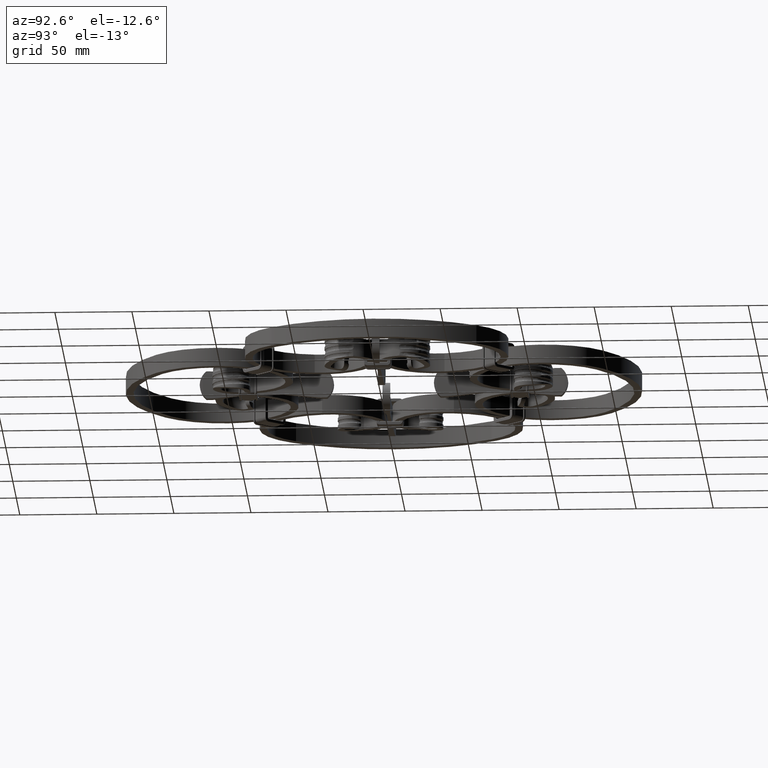
[diagram: clean part render]
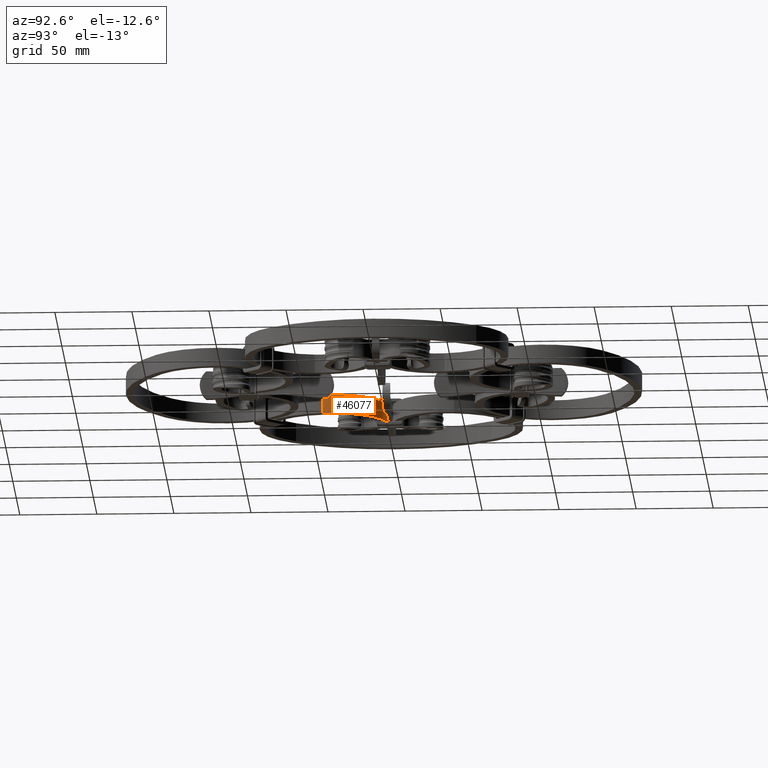
[diagram: same view with one face highlighted and labeled with its STEP entity id]
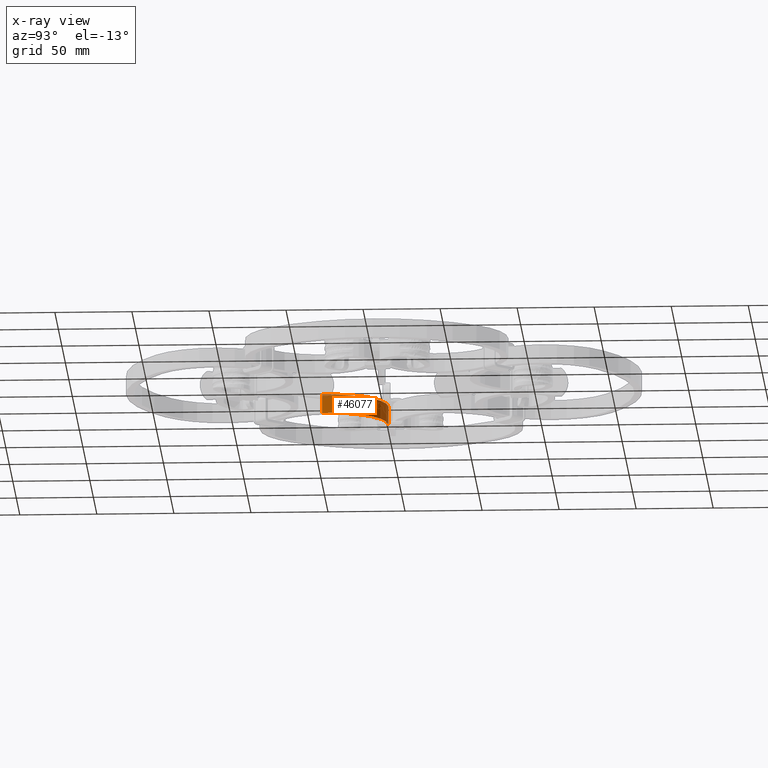
[diagram: x-ray of the same camera — body ghosted, the highlighted face saturated]
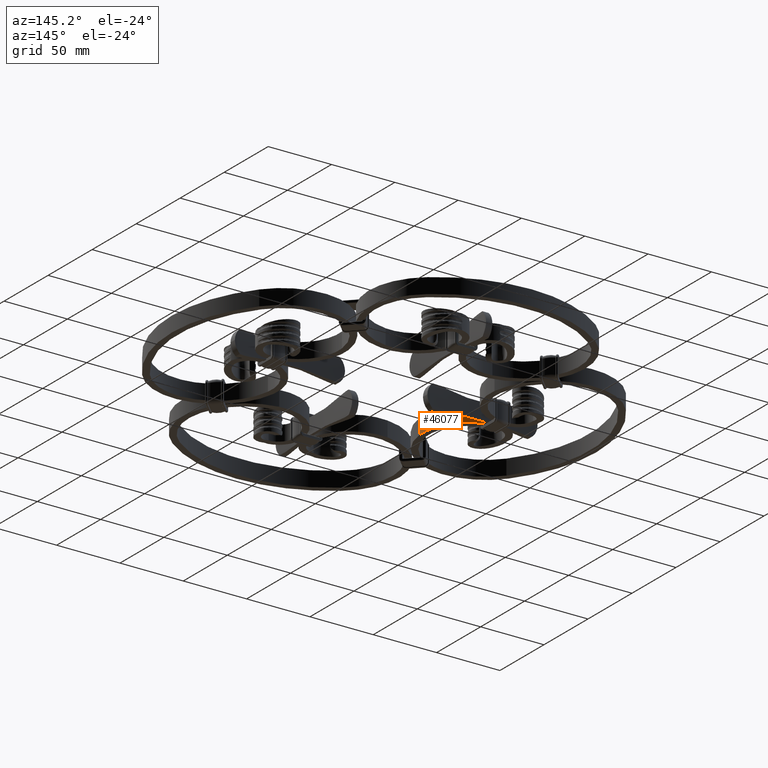
[diagram: same view with one face highlighted and labeled with its STEP entity id]
A machine part, auxiliary view. The second image highlights one B-rep face of the part: STEP entity #46077.
The next image is the same camera in x-ray: the body ghosted, the highlighted face saturated — about 5% of this face is hidden behind the body in this view.
A second angle (auxiliary view) of the same face is appended — the face is thin or edge-on in the first view.
In plain terms, the highlighted cylindrical surface (partial cylindrical patch) has radius 36.7956 mm, axis along (-0, 0, -1).
Its self-contained STEP definition (entity closure, byte-faithful):
#612 = VERTEX_POINT ( 'NONE', #16898 ) ;
#5756 = CARTESIAN_POINT ( 'NONE',  ( -93.99999999999995737, -38.09556694813030475, 0.000000000000000000 ) ) ;
#8301 = DIRECTION ( 'NONE',  ( 0.000000000000000000, 0.000000000000000000, 1.000000000000000000 ) ) ;
#10090 = ORIENTED_EDGE ( 'NONE', *, *, #55369, .F. ) ;
#13513 = DIRECTION ( 'NONE',  ( 0.000000000000000000, -0.000000000000000000, 1.000000000000000000 ) ) ;
#13982 = DIRECTION ( 'NONE',  ( 0.9919673218095285128, -0.1264943969590397455, 0.000000000000000000 ) ) ;
#14413 = DIRECTION ( 'NONE',  ( 0.000000000000000000, -0.000000000000000000, 1.000000000000000000 ) ) ;
#16898 = CARTESIAN_POINT ( 'NONE',  ( -93.99999999999997158, -1.300000000000016476, 5.999999999999998224 ) ) ;
#18466 = EDGE_CURVE ( 'NONE', #57548, #612, #63672, .T. ) ;
#21064 = VERTEX_POINT ( 'NONE', #41762 ) ;
#21146 = CIRCLE ( 'NONE', #65521, 36.79556694813030049 ) ;
#21432 = DIRECTION ( 'NONE',  ( -0.000000000000000000, 0.000000000000000000, -1.000000000000000000 ) ) ;
#23334 = CARTESIAN_POINT ( 'NONE',  ( -93.99999999999997158, -1.300000000000016476, -5.999999999999998224 ) ) ;
#23495 = CARTESIAN_POINT ( 'NONE',  ( -93.99999999999995737, -38.09556694813030475, -5.999999999999998224 ) ) ;
#23792 = ORIENTED_EDGE ( 'NONE', *, *, #18466, .T. ) ;
#24768 = ORIENTED_EDGE ( 'NONE', *, *, #37289, .T. ) ;
#24946 = LINE ( 'NONE', #59981, #50071 ) ;
#25868 = ORIENTED_EDGE ( 'NONE', *, *, #47948, .F. ) ;
#31636 = CARTESIAN_POINT ( 'NONE',  ( -57.49999999999994316, -42.75000000000002132, -5.999999999999998224 ) ) ;
#33536 = CARTESIAN_POINT ( 'NONE',  ( -93.99999999999997158, -1.300000000000023359, -5.999999999999998224 ) ) ;
#34766 = DIRECTION ( 'NONE',  ( 0.9919673218095285128, -0.1264943969590397455, 0.000000000000000000 ) ) ;
#37289 = EDGE_CURVE ( 'NONE', #60948, #57548, #45782, .T. ) ;
#41762 = CARTESIAN_POINT ( 'NONE',  ( -57.49999999999994316, -42.75000000000002132, 5.999999999999998224 ) ) ;
#42202 = DIRECTION ( 'NONE',  ( -1.000000000000000000, 0.000000000000000000, 0.000000000000000000 ) ) ;
#44228 = AXIS2_PLACEMENT_3D ( 'NONE', #5756, #21432, #42202 ) ;
#45622 = AXIS2_PLACEMENT_3D ( 'NONE', #23495, #13513, #34766 ) ;
#45782 = CIRCLE ( 'NONE', #45622, 36.79556694813030049 ) ;
#46077 = ADVANCED_FACE ( 'NONE', ( #50952 ), #49347, .T. ) ;
#47948 = EDGE_CURVE ( 'NONE', #60948, #21064, #24946, .T. ) ;
#48220 = VECTOR ( 'NONE', #60288, 1000.000000000000000 ) ;
#49347 = CYLINDRICAL_SURFACE ( 'NONE', #44228, 36.79556694813031470 ) ;
#50071 = VECTOR ( 'NONE', #8301, 1000.000000000000000 ) ;
#50952 = FACE_OUTER_BOUND ( 'NONE', #53658, .T. ) ;
#53658 = EDGE_LOOP ( 'NONE', ( #10090, #25868, #24768, #23792 ) ) ;
#55369 = EDGE_CURVE ( 'NONE', #21064, #612, #21146, .T. ) ;
#57548 = VERTEX_POINT ( 'NONE', #23334 ) ;
#59981 = CARTESIAN_POINT ( 'NONE',  ( -57.49999999999994316, -42.75000000000002132, -5.999999999999998224 ) ) ;
#60288 = DIRECTION ( 'NONE',  ( 0.000000000000000000, 0.000000000000000000, 1.000000000000000000 ) ) ;
#60659 = CARTESIAN_POINT ( 'NONE',  ( -93.99999999999995737, -38.09556694813030475, 5.999999999999998224 ) ) ;
#60948 = VERTEX_POINT ( 'NONE', #31636 ) ;
#63672 = LINE ( 'NONE', #33536, #48220 ) ;
#65521 = AXIS2_PLACEMENT_3D ( 'NONE', #60659, #14413, #13982 ) ;